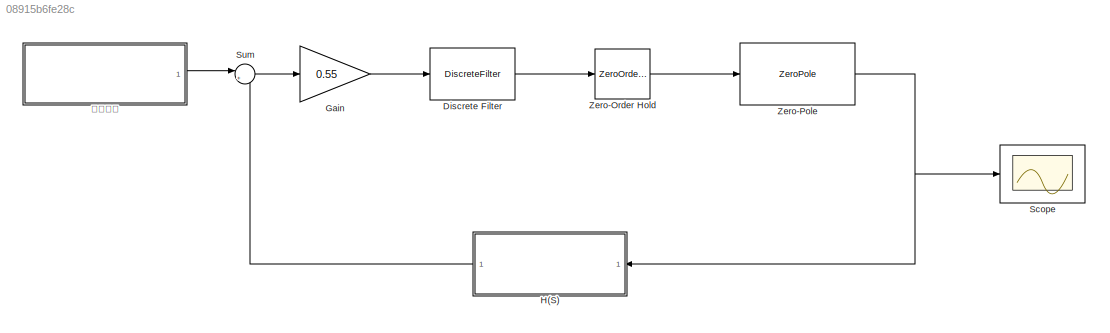
MODEL slx_08915b6fe28c
KIND model
CONFIG AbsTol = auto
CONFIG FixedStep = 0.05
CONFIG MaxStep = auto
CONFIG MinStep = auto
CONFIG RelTol = 1e-3
CONFIG SampleTimeConstraint = Unconstrained
CONFIG Solver = VariableStepAuto
CONFIG SolverMode = Auto
CONFIG SolverName = VariableStepAuto
CONFIG StartTime = 0.0
CONFIG StopTime = 10.0
BLOCK [DiscreteFilter] Discrete Filter
  Denominator = [1 -0.98]
  InputPortMap = u0
  Numerator = [1 -0.96]
  Ports = [1, 1]
  SampleTime = 0.05
BLOCK [Gain] Gain
  Gain = 0.55
  OutDataTypeStr = Inherit: Inherit via internal rule
  ParamDataTypeStr = Inherit: Inherit via internal rule
  SaturateOnIntegerOverflow = off
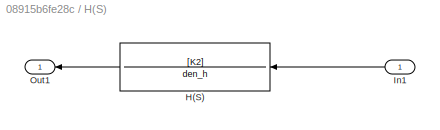
BLOCK [SubSystem] H(S)
  Ports = [1, 1]
  RequestExecContextInheritance = off
  Variant = off
BLOCK [TransferFcn] H(S)/H(S)
  Denominator = den_h
  Numerator = [K2]
BLOCK [Inport] H(S)/In1
  IconDisplay = Port number
BLOCK [Outport] H(S)/Out1
  IconDisplay = Port number
BLOCK [Scope] Scope
  Ports = [1]
  ScopeSpecificationString = Simulink.scopes.TimeScopeBlockCfg('CurrentConfiguration', extmgr.ConfigurationSet(extmgr.Configuration('Core','General UI',true),extmgr.Configuration('Core','Source UI',true),extmgr.Configuration('Sources','WiredSimulink',true,'DataLogging',true,'DataLoggingVariableName','system_res','DataLoggingSaveFormat','Array'),extmgr.Configuration('Visuals','Time Domain',true,'SerializedDisplays',{struct('Mi...<+1423ch>
BLOCK [Sum] Sum
  IconShape = round
  InputSameDT = off
  Inputs = |+-
  OutDataTypeStr = Inherit: Inherit via internal rule
  Ports = [2, 1]
  SaturateOnIntegerOverflow = off
BLOCK [ZeroOrderHold] Zero-Order Hold
  SampleTime = 0.05
BLOCK [ZeroPole] Zero-Pole
  Gain = [30]
  Poles = [0 -10 -2]
  Zeros = []
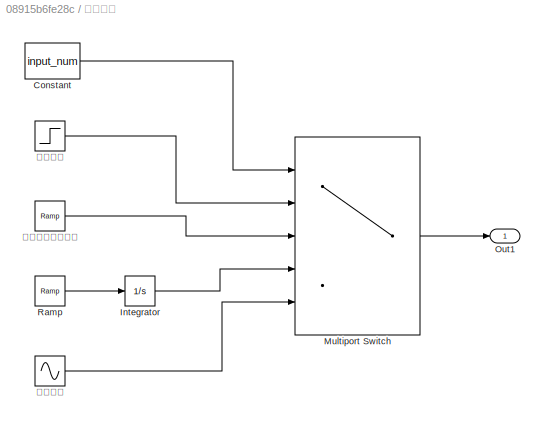
BLOCK [SubSystem] 输入信号
  Ports = [0, 1]
  RequestExecContextInheritance = off
  Variant = off
BLOCK [Constant] 输入信号/Constant
  Value = input_num
BLOCK [Integrator] 输入信号/Integrator
  Ports = [1, 1]
BLOCK [MultiPortSwitch] 输入信号/Multiport Switch
  InputSameDT = off
  Inputs = 4
  Ports = [5, 1]
  SaturateOnIntegerOverflow = off
BLOCK [Outport] 输入信号/Out1
  IconDisplay = Port number
BLOCK [Reference] 输入信号/Ramp  REF=simulink/Sources/Ramp
  Ports = [0, 1]
  SourceBlock = simulink/Sources/Ramp
  SourceType = Ramp
BLOCK [Reference] 输入信号/斜坡（速度）输入  REF=simulink/Sources/Ramp
  Ports = [0, 1]
  SourceBlock = simulink/Sources/Ramp
  SourceType = Ramp
BLOCK [Sin] 输入信号/正弦输入
  Ports = [0, 1]
  SampleTime = 0
BLOCK [Step] 输入信号/阶跃输入
  After = step_final
  Before = step_init
  SampleTime = 0
  Time = step_time
LINE Discrete Filter:1 -> Zero-Order Hold:1
LINE Gain:1 -> Discrete Filter:1
LINE H(S)/H(S):1 -> H(S)/Out1:1
LINE H(S)/In1:1 -> H(S)/H(S):1
LINE H(S):1 -> Sum:2
LINE Sum:1 -> Gain:1
LINE Zero-Order Hold:1 -> Zero-Pole:1
NET Zero-Pole:1 -> H(S):1, Scope:1
LINE 输入信号/Constant:1 -> 输入信号/Multiport Switch:1
LINE 输入信号/Integrator:1 -> 输入信号/Multiport Switch:4
LINE 输入信号/Multiport Switch:1 -> 输入信号/Out1:1
LINE 输入信号/Ramp:1 -> 输入信号/Integrator:1
LINE 输入信号/斜坡（速度）输入:1 -> 输入信号/Multiport Switch:3
LINE 输入信号/正弦输入:1 -> 输入信号/Multiport Switch:5
LINE 输入信号/阶跃输入:1 -> 输入信号/Multiport Switch:2
LINE 输入信号:1 -> Sum:1
note: NET lines group one-source signal fan-out (src -> all destinations, sorted); 1:1 wires keep LINE
